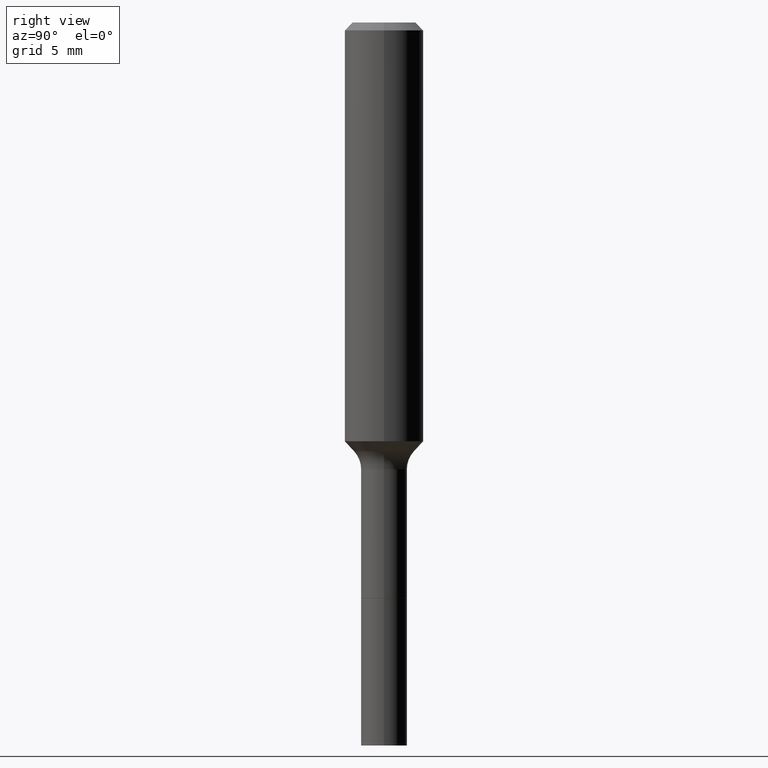
[diagram: clean part render]
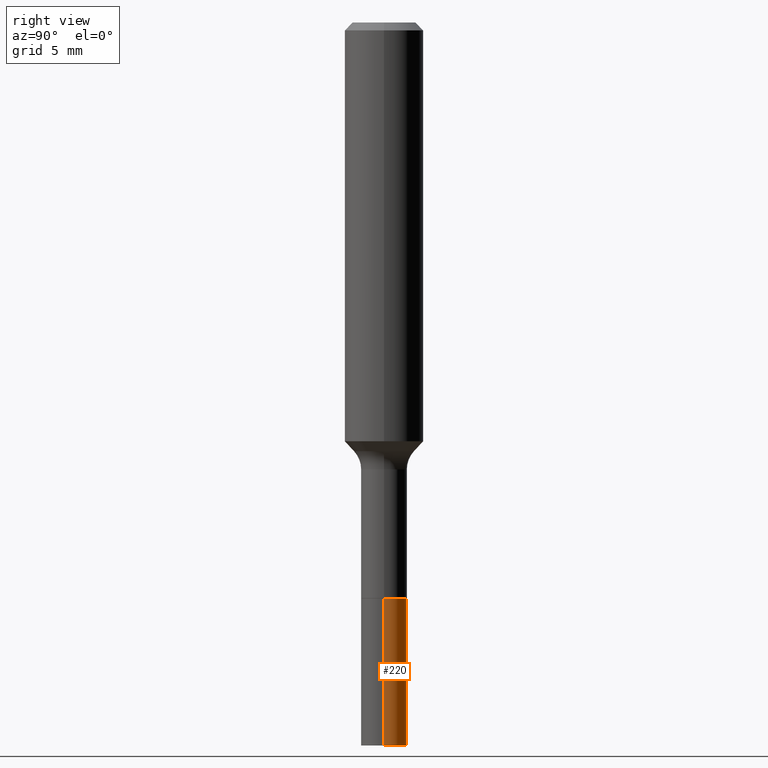
[diagram: same view with one face highlighted and labeled with its STEP entity id]
A machine part, right view. The second image highlights one B-rep face of the part: STEP entity #220.
In plain terms, the highlighted cylindrical surface (edge-blend (fillet) strip) has radius 1.7501 mm, axis along (-0, 0, 1).
Its self-contained STEP definition (entity closure, byte-faithful):
#20 = DIRECTION ( 'NONE',  ( -2.445468806185136877E-29, 3.491481338843145188E-15, 1.000000000000000000 ) ) ;
#24 = DIRECTION ( 'NONE',  ( -2.445468806185136597E-29, 3.491481338843145583E-15, 1.000000000000000000 ) ) ;
#25 = EDGE_LOOP ( 'NONE', ( #191, #269, #408, #87 ) ) ;
#52 = LINE ( 'NONE', #422, #216 ) ;
#65 = CIRCLE ( 'NONE', #224, 0.06890000000000000291 ) ;
#87 = ORIENTED_EDGE ( 'NONE', *, *, #118, .F. ) ;
#88 = DIRECTION ( 'NONE',  ( 1.000000000000000000, -6.982962677686265922E-15, 0.000000000000000000 ) ) ;
#98 = CARTESIAN_POINT ( 'NONE',  ( 4.216966409385649156E-29, -6.020710420701119744E-15, -1.724399999999999711 ) ) ;
#102 = DIRECTION ( 'NONE',  ( -2.445468806185136597E-29, 3.491481338843145583E-15, 1.000000000000000000 ) ) ;
#118 = EDGE_CURVE ( 'NONE', #215, #421, #52, .T. ) ;
#124 = CARTESIAN_POINT ( 'NONE',  ( 0.06890000000000000291, -6.501836549193703482E-15, -1.724399999999999711 ) ) ;
#133 = CARTESIAN_POINT ( 'NONE',  ( -0.06890000000000007230, -5.531146475762410202E-15, -1.724399999999999711 ) ) ;
#138 = FACE_OUTER_BOUND ( 'NONE', #25, .T. ) ;
#156 = EDGE_CURVE ( 'NONE', #482, #469, #322, .T. ) ;
#163 = CARTESIAN_POINT ( 'NONE',  ( -0.06890000000000000291, -6.301018110977323253E-15, -1.724399999999999711 ) ) ;
#172 = CARTESIAN_POINT ( 'NONE',  ( 0.06890000000000014169, -8.041579819623531161E-15, -2.165399999999999991 ) ) ;
#173 = CIRCLE ( 'NONE', #453, 0.06890000000000014169 ) ;
#191 = ORIENTED_EDGE ( 'NONE', *, *, #290, .T. ) ;
#215 = VERTEX_POINT ( 'NONE', #172 ) ;
#216 = VECTOR ( 'NONE', #291, 39.37007874015748143 ) ;
#220 = ADVANCED_FACE ( 'NONE', ( #138 ), #463, .T. ) ;
#223 = DIRECTION ( 'NONE',  ( -2.445468806185136597E-29, 3.491481338843145583E-15, 1.000000000000000000 ) ) ;
#224 = AXIS2_PLACEMENT_3D ( 'NONE', #504, #223, #386 ) ;
#253 = DIRECTION ( 'NONE',  ( 1.000000000000000000, -6.982962677686273021E-15, 0.000000000000000000 ) ) ;
#269 = ORIENTED_EDGE ( 'NONE', *, *, #156, .T. ) ;
#290 = EDGE_CURVE ( 'NONE', #215, #482, #173, .T. ) ;
#291 = DIRECTION ( 'NONE',  ( -2.445468806185136877E-29, 3.491481338843145188E-15, 1.000000000000000000 ) ) ;
#295 = CARTESIAN_POINT ( 'NONE',  ( 5.295418152913294345E-29, -7.560453691130947423E-15, -2.165399999999999991 ) ) ;
#316 = EDGE_CURVE ( 'NONE', #421, #469, #65, .T. ) ;
#322 = LINE ( 'NONE', #133, #466 ) ;
#354 = CARTESIAN_POINT ( 'NONE',  ( -0.06890000000000012781, -6.301018110977322464E-15, -2.165399999999999991 ) ) ;
#384 = AXIS2_PLACEMENT_3D ( 'NONE', #98, #24, #253 ) ;
#386 = DIRECTION ( 'NONE',  ( 1.000000000000000000, -6.982962677686265922E-15, 0.000000000000000000 ) ) ;
#408 = ORIENTED_EDGE ( 'NONE', *, *, #316, .F. ) ;
#421 = VERTEX_POINT ( 'NONE', #124 ) ;
#422 = CARTESIAN_POINT ( 'NONE',  ( 0.06890000000000007230, -6.501836549193704271E-15, -1.724399999999999711 ) ) ;
#453 = AXIS2_PLACEMENT_3D ( 'NONE', #295, #102, #88 ) ;
#463 = CYLINDRICAL_SURFACE ( 'NONE', #384, 0.06890000000000007230 ) ;
#466 = VECTOR ( 'NONE', #20, 39.37007874015748143 ) ;
#469 = VERTEX_POINT ( 'NONE', #163 ) ;
#482 = VERTEX_POINT ( 'NONE', #354 ) ;
#504 = CARTESIAN_POINT ( 'NONE',  ( 4.216966409385649156E-29, -6.020710420701119744E-15, -1.724399999999999711 ) ) ;